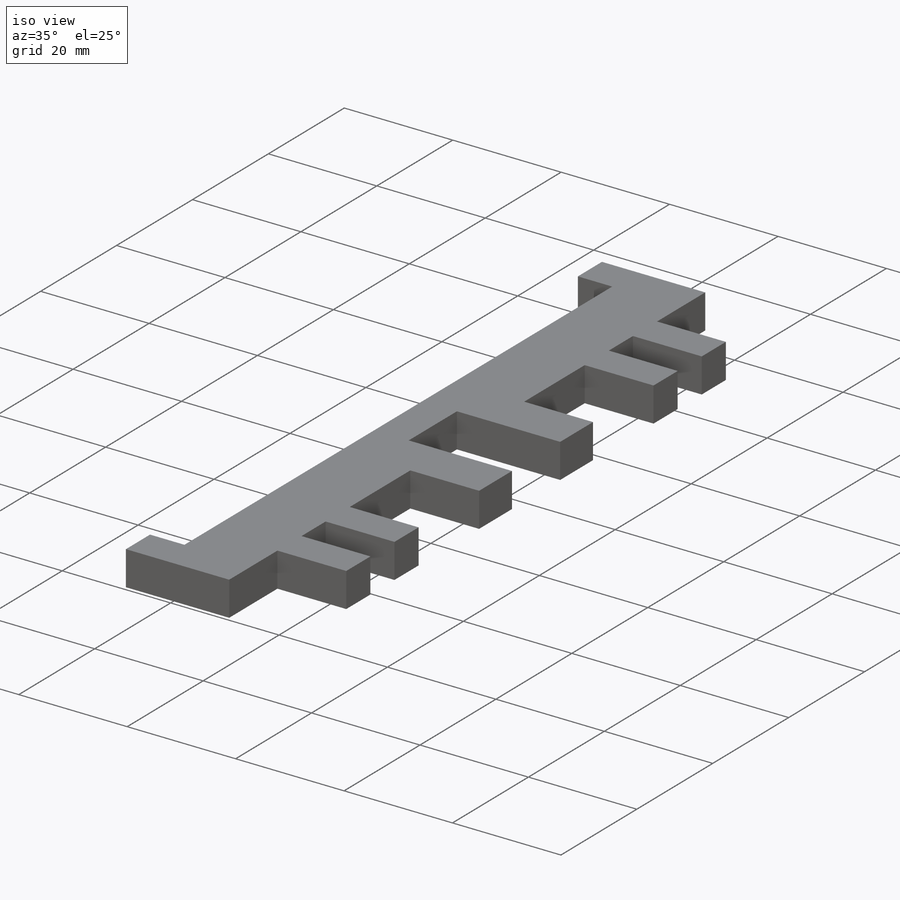
[diagram: iso view]
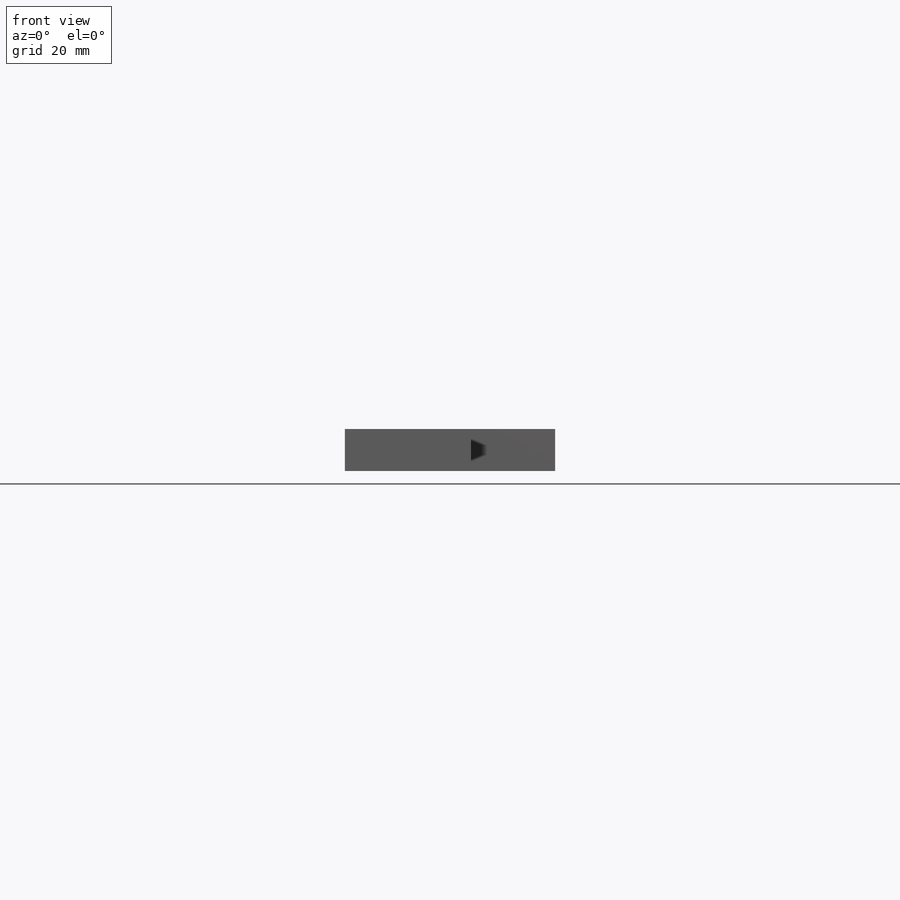
[diagram: front view]
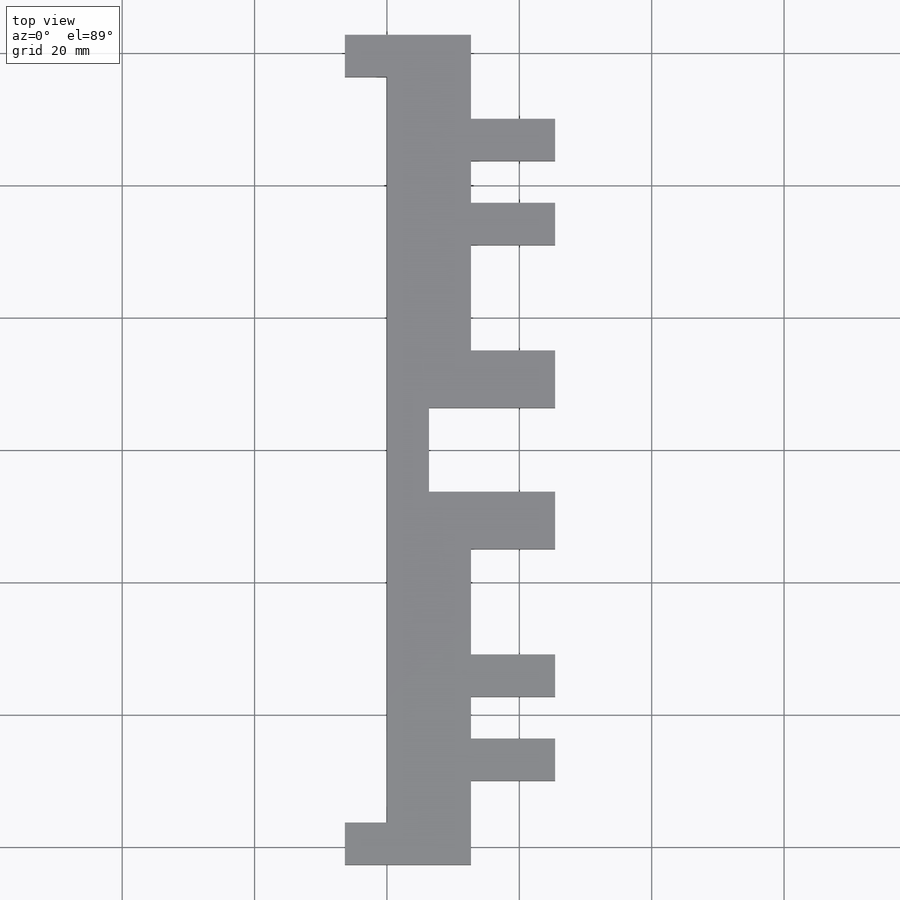
[diagram: top view]
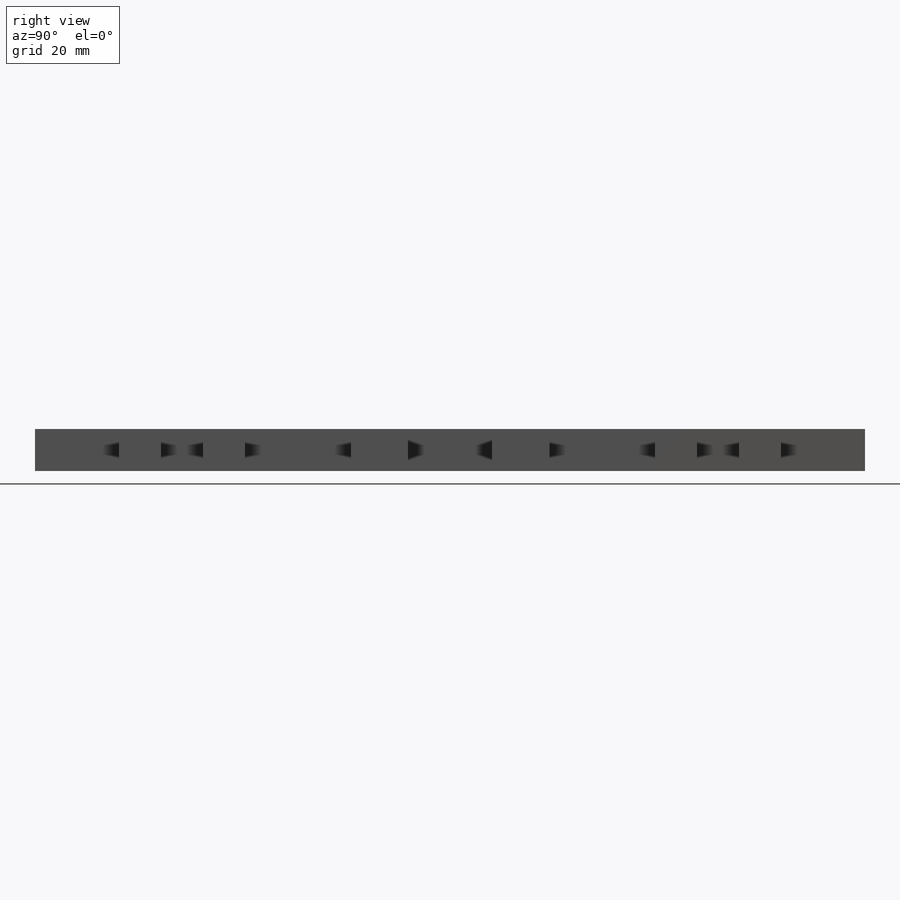
[diagram: right view]
SOLIDWORKS PART (.sldprt)
format: sldprt  version: not decoded by parser v0  size: 302,592 bytes
history: native  units: mm
features: sketch x7, extrude x4, cut_extrude x3, mirror x3, material x1 (+13 scaffold rows collapsed)
feature tree (31):
  scaffold x13  (default folders/planes/origin — collapsed)
  material  "Acrylic (Medium-high impact)"
  sketch  "Sketch1"  dims[c1.D1=~137.963544mm c1.D2=~55.50877mm c2.D1=125.4mm c2.D2=25.4mm]
  extrude  "Boss-Extrude1"  Depth=6.35mm
  sketch  "Sketch2"  dims[c1.D1=~3.414553mm c1.D2=~7.692075mm c2.D1=~3.414553mm c2.D2=3.175mm c2.D3=~6.829106mm c3.D1=6.35mm c3.D3=112.7mm]
  cut_extrude  "Cut-Extrude1"  Depth=12.7mm
  sketch  "Sketch3"  dims[c1.D1=~2.434168mm c1.D2=~6.251386mm c2.D1=0.0mm c2.D2=0.0mm c2.D3=12.7mm c2.D4=62.7mm]
  cut_extrude  "Cut-Extrude2"  Depth=6.35mm
  sketch  "Sketch4"  dims[c1.D1=~4.647048mm c1.D2=~4.97898mm c2.D1=0.0mm c2.D2=0.0mm c2.D3=8.65mm c2.D4=0.0mm]
  extrude  "Boss-Extrude2"  Depth=12.7mm
  mirror  "Mirror1"
  sketch  "Sketch5"  dims[c1.D1=~3.132968mm c1.D2=~5.678504mm c2.D1=0.0mm c2.D2=0.0mm c2.D3=12.7mm c2.D4=6.35mm]
  extrude  "Boss-Extrude3"  Depth=12.7mm
  sketch  "Sketch6"  dims[c1.D1=~3.720399mm c1.D2=~4.503641mm c2.D1=6.35mm c2.D2=0.0mm c2.D3=0.0mm c2.D4=6.35mm]
  extrude  "Boss-Extrude4"  Depth=12.7mm
  mirror  "Mirror2"
  sketch  "Sketch10"  dims[c1.D1=6.35mm c1.D2=~4.18084mm c2.D1=6.35mm]
  cut_extrude  "Cut-Extrude3"  [1 undecoded]
  mirror  "Mirror3"
decode coverage: 13 of 17 modeling features carry decoded parameters
note: ~ marks probable driven/reference dimensions
note: 1 parameter value undecoded
note: suppression state not decoded; provenance and decode notes live in map.json
